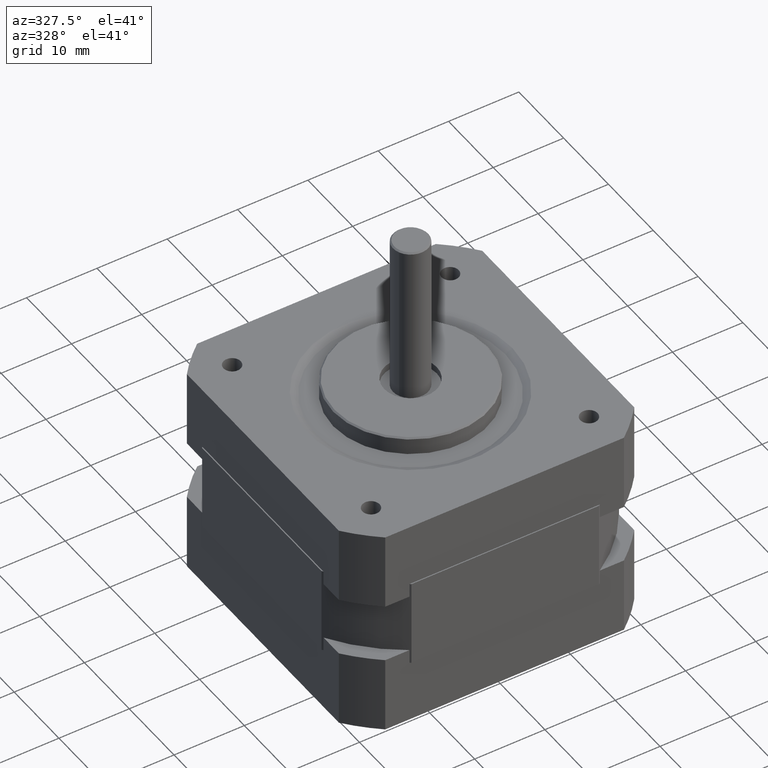
[diagram: clean part render]
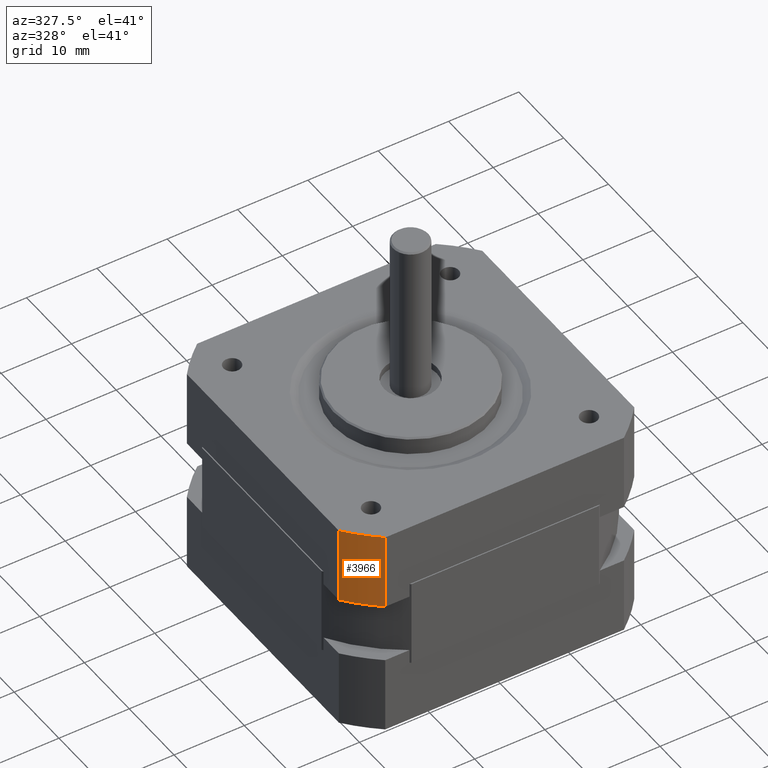
[diagram: same view with one face highlighted and labeled with its STEP entity id]
A machine part, auxiliary view. The second image highlights one B-rep face of the part: STEP entity #3966.
In plain terms, the highlighted cylindrical surface (partial cylindrical patch) has radius 27 mm, axis along (-0, -0, 1).
Its self-contained STEP definition (entity closure, byte-faithful):
#147=LINE('',#6108,#395);
#148=LINE('',#6110,#396);
#395=VECTOR('',#4860,11.);
#396=VECTOR('',#4863,11.);
#826=CYLINDRICAL_SURFACE('',#4262,27.);
#896=FACE_OUTER_BOUND('',#1169,.T.);
#1169=EDGE_LOOP('',(#2749,#2750,#2751,#2752));
#1466=CIRCLE('',#4234,27.);
#1471=CIRCLE('',#4243,27.);
#1719=VERTEX_POINT('',#6054);
#1720=VERTEX_POINT('',#6056);
#1727=VERTEX_POINT('',#6077);
#1728=VERTEX_POINT('',#6079);
#2115=EDGE_CURVE('',#1720,#1719,#1466,.T.);
#2126=EDGE_CURVE('',#1728,#1727,#1471,.T.);
#2137=EDGE_CURVE('',#1719,#1728,#147,.T.);
#2138=EDGE_CURVE('',#1720,#1727,#148,.T.);
#2749=ORIENTED_EDGE('',*,*,#2126,.T.);
#2750=ORIENTED_EDGE('',*,*,#2138,.F.);
#2751=ORIENTED_EDGE('',*,*,#2115,.T.);
#2752=ORIENTED_EDGE('',*,*,#2137,.T.);
#3966=ADVANCED_FACE('',(#896),#826,.T.);
#4234=AXIS2_PLACEMENT_3D('',#6057,#4796,#4797);
#4243=AXIS2_PLACEMENT_3D('',#6080,#4820,#4821);
#4262=AXIS2_PLACEMENT_3D('',#6109,#4861,#4862);
#4796=DIRECTION('center_axis',(-8.74300631892311E-16,-2.59037577520082E-32,
1.));
#4797=DIRECTION('ref_axis',(-0.777777777777778,-0.628539361054709,-6.80011602582908E-16));
#4820=DIRECTION('center_axis',(8.74300631892311E-16,2.59037577520082E-32,
-1.));
#4821=DIRECTION('ref_axis',(-0.777777777777778,-0.628539361054709,-6.80011602582908E-16));
#4860=DIRECTION('',(-8.7430063189231E-16,-2.59037577520082E-32,1.));
#4861=DIRECTION('center_axis',(-8.74300631892311E-16,-2.59037577520082E-32,
1.));
#4862=DIRECTION('ref_axis',(-0.777777777777778,-0.628539361054709,-6.80011602582908E-16));
#4863=DIRECTION('',(-8.7430063189231E-16,-2.59037577520082E-32,1.));
#6054=CARTESIAN_POINT('',(-16.9705627484771,-21.,-5.00000000000013));
#6056=CARTESIAN_POINT('',(-21.,-16.9705627484771,-5.00000000000013));
#6057=CARTESIAN_POINT('Origin',(-2.466270870546E-16,4.73220975404338E-15,
-5.00000000000011));
#6077=CARTESIAN_POINT('',(-21.,-16.9705627484771,5.99999999999987));
#6079=CARTESIAN_POINT('',(-16.9705627484771,-21.,5.99999999999987));
#6080=CARTESIAN_POINT('Origin',(-9.86393403787002E-15,4.73220975404338E-15,
5.99999999999989));
#6108=CARTESIAN_POINT('',(-16.9705627484771,-21.,-5.00000000000013));
#6109=CARTESIAN_POINT('Origin',(-2.466270870546E-16,4.73220975404338E-15,
-5.00000000000011));
#6110=CARTESIAN_POINT('',(-21.,-16.9705627484771,-5.00000000000013));